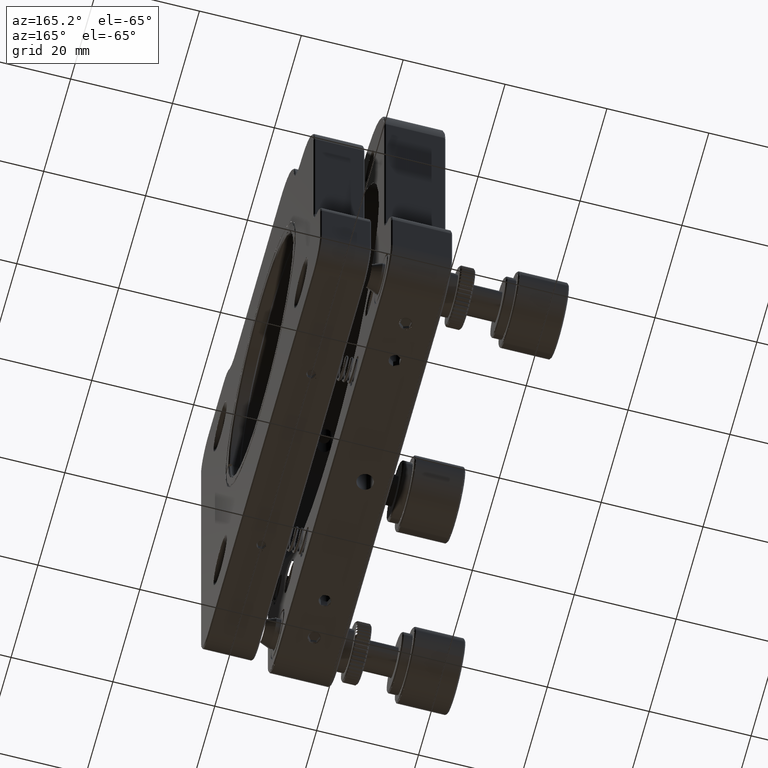
[diagram: clean part render]
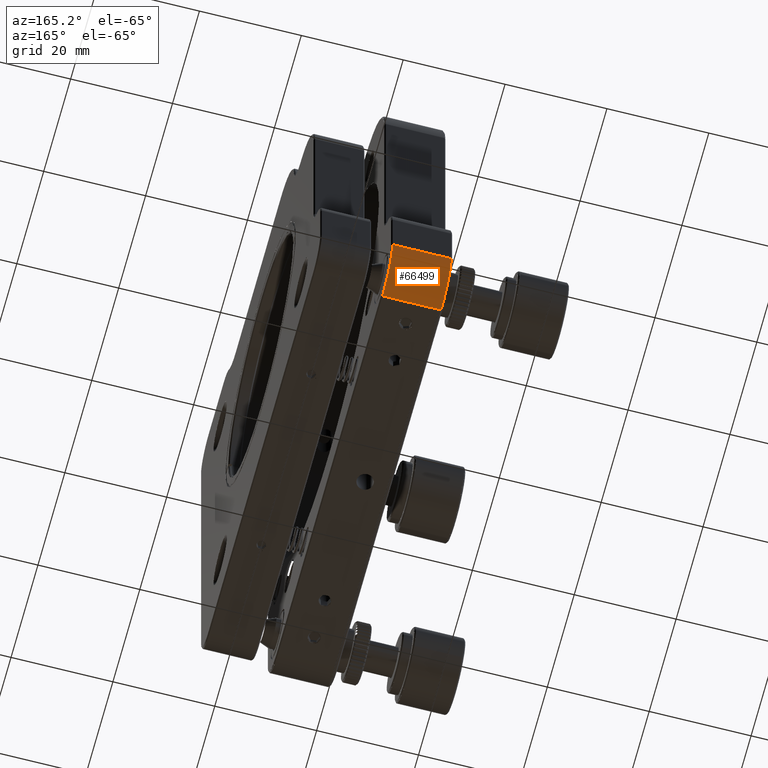
[diagram: same view with one face highlighted and labeled with its STEP entity id]
A machine part, auxiliary view. The second image highlights one B-rep face of the part: STEP entity #66499.
In plain terms, the highlighted cylindrical surface (partial cylindrical patch) has radius 7.5 mm, axis along (-1, 0, 0).
Its self-contained STEP definition (entity closure, byte-faithful):
#879 = EDGE_CURVE ( 'NONE', #29415, #113734, #42087, .T. ) ;
#8178 = EDGE_CURVE ( 'NONE', #92870, #76503, #22028, .T. ) ;
#9457 = AXIS2_PLACEMENT_3D ( 'NONE', #11076, #84252, #110272 ) ;
#9495 = ORIENTED_EDGE ( 'NONE', *, *, #21824, .T. ) ;
#11076 = CARTESIAN_POINT ( 'NONE',  ( -9.080910080472710533, 30.26806748824050430, 16.50000000000000000 ) ) ;
#17238 = CIRCLE ( 'NONE', #9457, 7.500000000000000000 ) ;
#21824 = EDGE_CURVE ( 'NONE', #76503, #29415, #17238, .T. ) ;
#21832 = EDGE_CURVE ( 'NONE', #113734, #92870, #40353, .T. ) ;
#22028 = LINE ( 'NONE', #58908, #47300 ) ;
#27414 = CARTESIAN_POINT ( 'NONE',  ( -20.58091008047275139, 30.26806748824050430, 16.50000000000000000 ) ) ;
#29415 = VERTEX_POINT ( 'NONE', #96393 ) ;
#30922 = AXIS2_PLACEMENT_3D ( 'NONE', #101264, #72872, #52330 ) ;
#32995 = CARTESIAN_POINT ( 'NONE',  ( -14.83091008047272119, 30.26806748824050430, 9.000000000000000000 ) ) ;
#40353 = CIRCLE ( 'NONE', #82858, 7.500000000000000000 ) ;
#42087 = LINE ( 'NONE', #32995, #100525 ) ;
#43861 = CYLINDRICAL_SURFACE ( 'NONE', #30922, 7.500000000000000000 ) ;
#47300 = VECTOR ( 'NONE', #78253, 1000.000000000000000 ) ;
#50561 = DIRECTION ( 'NONE',  ( -1.000000000000000000, 0.000000000000000000, 0.000000000000000000 ) ) ;
#52330 = DIRECTION ( 'NONE',  ( 0.000000000000000000, 0.000000000000000000, 1.000000000000000000 ) ) ;
#58908 = CARTESIAN_POINT ( 'NONE',  ( -14.83091008047272119, 37.76806748824049720, 16.50000000000000000 ) ) ;
#64399 = FACE_OUTER_BOUND ( 'NONE', #78453, .T. ) ;
#66499 = ADVANCED_FACE ( 'NONE', ( #64399 ), #43861, .T. ) ;
#70081 = ORIENTED_EDGE ( 'NONE', *, *, #21832, .T. ) ;
#72872 = DIRECTION ( 'NONE',  ( -1.000000000000000000, 0.000000000000000000, 0.000000000000000000 ) ) ;
#74562 = DIRECTION ( 'NONE',  ( 1.000000000000000000, -4.625929269271479997E-16, 4.625929269271479997E-16 ) ) ;
#76126 = CARTESIAN_POINT ( 'NONE',  ( -20.58091008047275139, 37.76806748824049720, 16.50000000000000000 ) ) ;
#76503 = VERTEX_POINT ( 'NONE', #113251 ) ;
#78253 = DIRECTION ( 'NONE',  ( 1.000000000000000000, 0.000000000000000000, 0.000000000000000000 ) ) ;
#78453 = EDGE_LOOP ( 'NONE', ( #97068, #70081, #96659, #9495 ) ) ;
#82858 = AXIS2_PLACEMENT_3D ( 'NONE', #27414, #74562, #84857 ) ;
#84252 = DIRECTION ( 'NONE',  ( -1.000000000000000000, -2.312964634635739999E-16, 2.312964634635739999E-16 ) ) ;
#84857 = DIRECTION ( 'NONE',  ( 4.625929269271485914E-16, 0.000000000000000000, -1.000000000000000000 ) ) ;
#90911 = CARTESIAN_POINT ( 'NONE',  ( -20.58091008047275139, 30.26806748824050430, 9.000000000000000000 ) ) ;
#92870 = VERTEX_POINT ( 'NONE', #76126 ) ;
#96393 = CARTESIAN_POINT ( 'NONE',  ( -9.080910080472710533, 30.26806748824050430, 9.000000000000000000 ) ) ;
#96659 = ORIENTED_EDGE ( 'NONE', *, *, #8178, .T. ) ;
#97068 = ORIENTED_EDGE ( 'NONE', *, *, #879, .T. ) ;
#100525 = VECTOR ( 'NONE', #50561, 1000.000000000000000 ) ;
#101264 = CARTESIAN_POINT ( 'NONE',  ( -7.929710080472709421, 30.26806748824050430, 16.50000000000000000 ) ) ;
#110272 = DIRECTION ( 'NONE',  ( 2.312964634635742957E-16, 0.000000000000000000, 1.000000000000000000 ) ) ;
#113251 = CARTESIAN_POINT ( 'NONE',  ( -9.080910080472710533, 37.76806748824049720, 16.50000000000000000 ) ) ;
#113734 = VERTEX_POINT ( 'NONE', #90911 ) ;